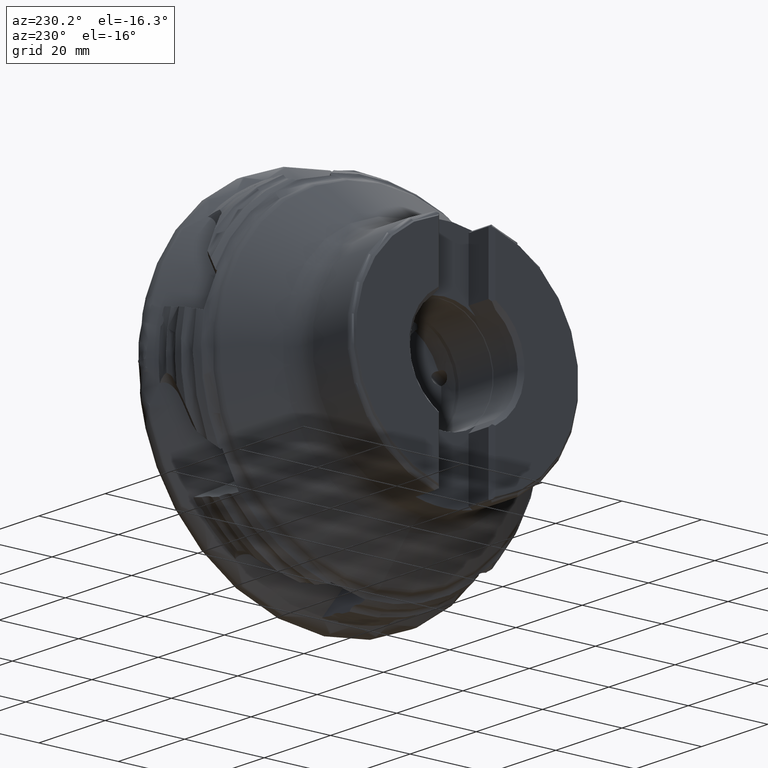
[diagram: clean part render]
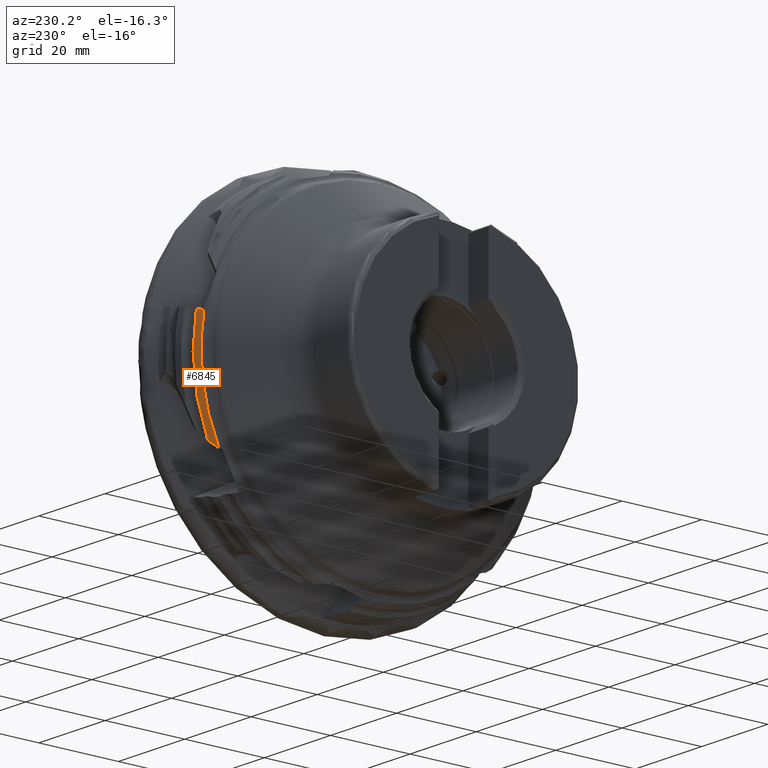
[diagram: same view with one face highlighted and labeled with its STEP entity id]
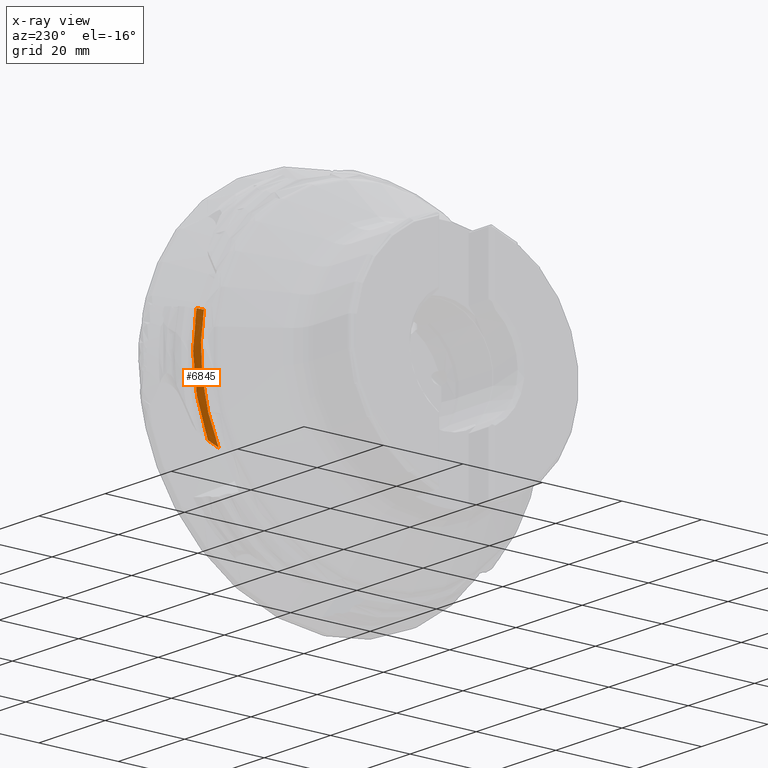
[diagram: x-ray of the same camera — body ghosted, the highlighted face saturated]
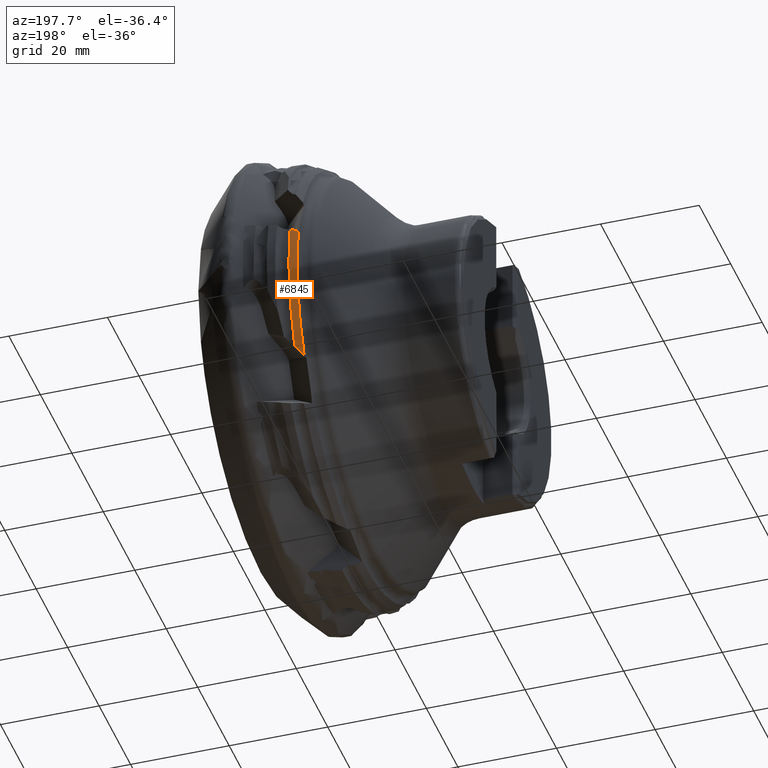
[diagram: same view with one face highlighted and labeled with its STEP entity id]
A machine part, auxiliary view. The second image highlights one B-rep face of the part: STEP entity #6845.
The next image is the same camera in x-ray: the body ghosted, the highlighted face saturated — about 0% of this face is hidden behind the body in this view.
A second angle (auxiliary view) of the same face is appended — the face is thin or edge-on in the first view.
In plain terms, the highlighted conical surface has half-angle 28.157 deg.
Its self-contained STEP definition (entity closure, byte-faithful):
#161 = DIRECTION ( 'NONE',  ( 0.0000000000000000000, 0.0000000000000000000, -1.000000000000000000 ) ) ;
#311 = CARTESIAN_POINT ( 'NONE',  ( -20.17222062099222100, 38.22736895163335900, -19.13807782075049600 ) ) ;
#498 = ORIENTED_EDGE ( 'NONE', *, *, #544, .T. ) ;
#499 = DIRECTION ( 'NONE',  ( 0.0000000000000000000, 0.0000000000000000000, -1.000000000000000000 ) ) ;
#544 = EDGE_CURVE ( 'NONE', #9430, #9776, #8928, .T. ) ;
#654 = EDGE_LOOP ( 'NONE', ( #7951, #1669, #5693, #1127, #498 ) ) ;
#1127 = ORIENTED_EDGE ( 'NONE', *, *, #3328, .T. ) ;
#1218 = CONICAL_SURFACE ( 'NONE', #4161, 43.50762943474236300, 0.4914390993468579800 ) ;
#1515 = DIRECTION ( 'NONE',  ( 1.000000000000000000, -0.0000000000000000000, -0.0000000000000000000 ) ) ;
#1580 = CARTESIAN_POINT ( 'NONE',  ( -20.12999866999935600, 42.01261738552594900, 8.029350316874643000 ) ) ;
#1634 = CARTESIAN_POINT ( 'NONE',  ( -20.12999866999935600, 42.01261738552594900, 8.029350316874643000 ) ) ;
#1656 = EDGE_CURVE ( 'NONE', #5714, #9776, #4171, .T. ) ;
#1669 = ORIENTED_EDGE ( 'NONE', *, *, #3022, .T. ) ;
#2403 = B_SPLINE_CURVE_WITH_KNOTS ( 'NONE', 3,
 ( #5029, #8982, #9788, #311 ),
 .UNSPECIFIED., .F., .F.,
 ( 4, 4 ),
 ( 0.0000000000000000000, 0.002650383516089118100 ),
 .UNSPECIFIED. ) ;
#2804 = CARTESIAN_POINT ( 'NONE',  ( -19.67263823275252900, 42.23389972827831000, 8.175569225412969500 ) ) ;
#3022 = EDGE_CURVE ( 'NONE', #5714, #9460, #2403, .T. ) ;
#3046 = VERTEX_POINT ( 'NONE', #8205 ) ;
#3328 = EDGE_CURVE ( 'NONE', #3046, #9430, #9301, .T. ) ;
#3596 = CARTESIAN_POINT ( 'NONE',  ( -19.21513332487986100, 42.45489095012942500, 8.321777141603394800 ) ) ;
#3619 = AXIS2_PLACEMENT_3D ( 'NONE', #9625, #4877, #161 ) ;
#3717 = EDGE_CURVE ( 'NONE', #9460, #3046, #7378, .T. ) ;
#3865 = CARTESIAN_POINT ( 'NONE',  ( -18.75749126960946400, 42.67560460097553900, 8.467974431471544600 ) ) ;
#3991 = CARTESIAN_POINT ( 'NONE',  ( -20.17222062099222100, 41.92865753919846100, 8.341788573082856900 ) ) ;
#4161 = AXIS2_PLACEMENT_3D ( 'NONE', #6035, #9208, #499 ) ;
#4171 = CIRCLE ( 'NONE', #3619, 43.50762943474236300 ) ;
#4387 = CARTESIAN_POINT ( 'NONE',  ( -18.75749126960946400, 42.67560460097553900, 8.467974431471544600 ) ) ;
#4877 = DIRECTION ( 'NONE',  ( 1.000000000000000000, -0.0000000000000000000, -0.0000000000000000000 ) ) ;
#5029 = CARTESIAN_POINT ( 'NONE',  ( -18.75749126960946000, 39.81030525870861700, -17.55145048818749500 ) ) ;
#5565 = CARTESIAN_POINT ( 'NONE',  ( -20.17222062099222100, 38.22736895163335900, -19.13807782075049600 ) ) ;
#5580 = CARTESIAN_POINT ( 'NONE',  ( -20.15842096535784500, 41.95689303406649600, 8.237720062296062900 ) ) ;
#5693 = ORIENTED_EDGE ( 'NONE', *, *, #3717, .T. ) ;
#5695 = FACE_OUTER_BOUND ( 'NONE', #654, .T. ) ;
#5714 = VERTEX_POINT ( 'NONE', #7698 ) ;
#6035 = CARTESIAN_POINT ( 'NONE',  ( -18.75749126960946400, 0.0000000000000000000, 0.0000000000000000000 ) ) ;
#6267 = CARTESIAN_POINT ( 'NONE',  ( -20.17222062099221700, 0.0000000000000000000, 0.0000000000000000000 ) ) ;
#6373 = CARTESIAN_POINT ( 'NONE',  ( -20.14434696288452600, 41.98487968691138400, 8.133573837708404100 ) ) ;
#6845 = ADVANCED_FACE ( 'NONE', ( #5695 ), #1218, .T. ) ;
#7061 = DIRECTION ( 'NONE',  ( 0.0000000000000000000, 0.0000000000000000000, -1.000000000000000000 ) ) ;
#7378 = CIRCLE ( 'NONE', #7572, 42.75041239143083500 ) ;
#7572 = AXIS2_PLACEMENT_3D ( 'NONE', #6267, #1515, #7061 ) ;
#7698 = CARTESIAN_POINT ( 'NONE',  ( -18.75749126960946000, 39.81030525870861700, -17.55145048818749500 ) ) ;
#7951 = ORIENTED_EDGE ( 'NONE', *, *, #1656, .F. ) ;
#8205 = CARTESIAN_POINT ( 'NONE',  ( -20.17222062099222100, 41.92865753919846100, 8.341788573082856900 ) ) ;
#8928 = B_SPLINE_CURVE_WITH_KNOTS ( 'NONE', 3,
 ( #9132, #2804, #3596, #4387 ),
 .UNSPECIFIED., .F., .F.,
 ( 4, 4 ),
 ( 4.903950516110158500E-005, 0.001635141558941548300 ),
 .UNSPECIFIED. ) ;
#8982 = CARTESIAN_POINT ( 'NONE',  ( -19.23732370895668400, 39.29449781476786500, -18.08477519772832300 ) ) ;
#9132 = CARTESIAN_POINT ( 'NONE',  ( -20.12999866999935600, 42.01261738552594900, 8.029350316874643000 ) ) ;
#9208 = DIRECTION ( 'NONE',  ( 1.000000000000000000, -0.0000000000000000000, -0.0000000000000000000 ) ) ;
#9301 =( BOUNDED_CURVE ( )  B_SPLINE_CURVE ( 3, ( #3991, #5580, #6373, #1634 ),
 .UNSPECIFIED., .F., .F. ) 
 B_SPLINE_CURVE_WITH_KNOTS ( ( 4, 4 ),
 ( 3.241961155334965600, 3.245965809371636400 ),
 .UNSPECIFIED. ) 
 CURVE ( )  GEOMETRIC_REPRESENTATION_ITEM ( )  RATIONAL_B_SPLINE_CURVE ( ( 1.000000000000000000, 0.9999986635626170200, 0.9999986635626170200, 1.000000000000000000 ) ) 
 REPRESENTATION_ITEM ( '' )  );
#9430 = VERTEX_POINT ( 'NONE', #1580 ) ;
#9460 = VERTEX_POINT ( 'NONE', #5565 ) ;
#9625 = CARTESIAN_POINT ( 'NONE',  ( -18.75749126960946400, 0.0000000000000000000, 0.0000000000000000000 ) ) ;
#9776 = VERTEX_POINT ( 'NONE', #3865 ) ;
#9788 = CARTESIAN_POINT ( 'NONE',  ( -19.70905293820697300, 38.76709901419545900, -18.61376081014494600 ) ) ;